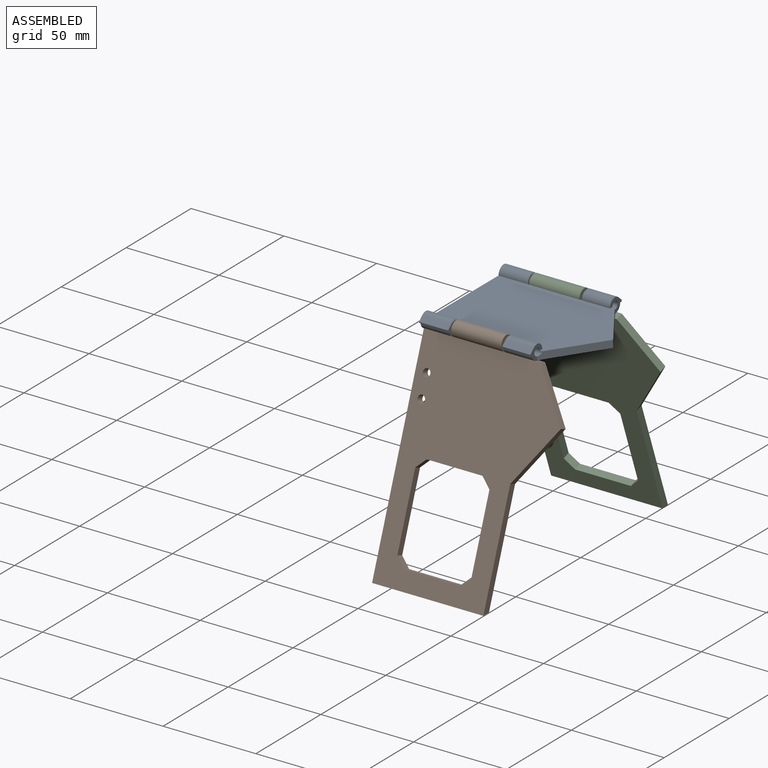
[diagram: assembled view]
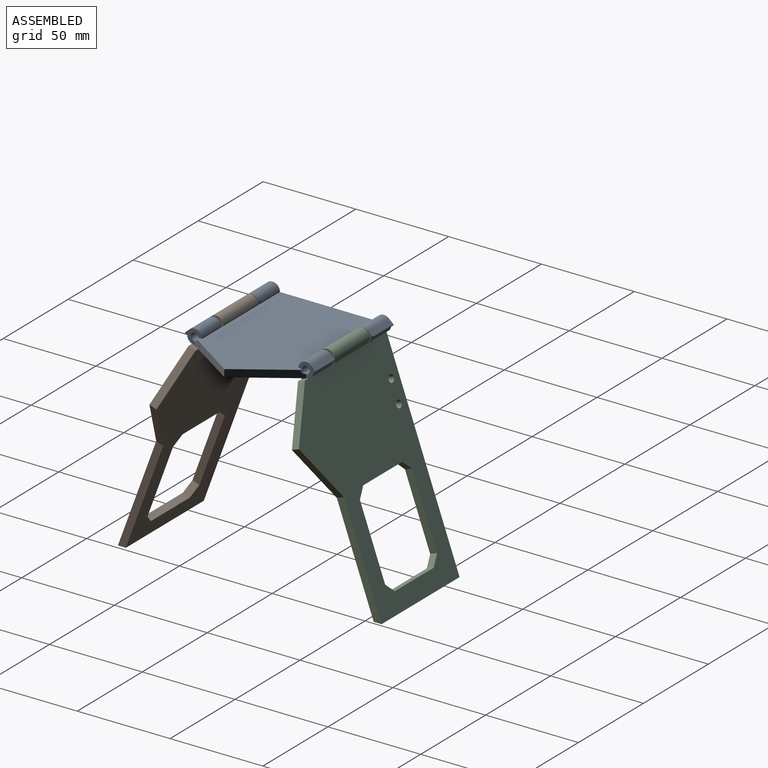
[diagram: assembled view, second angle]
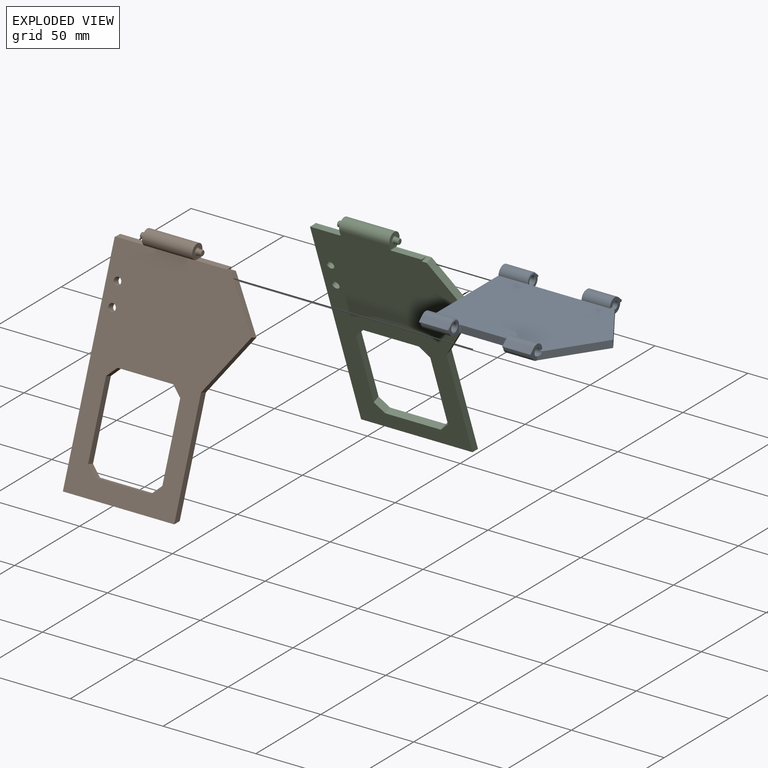
[diagram: exploded view]
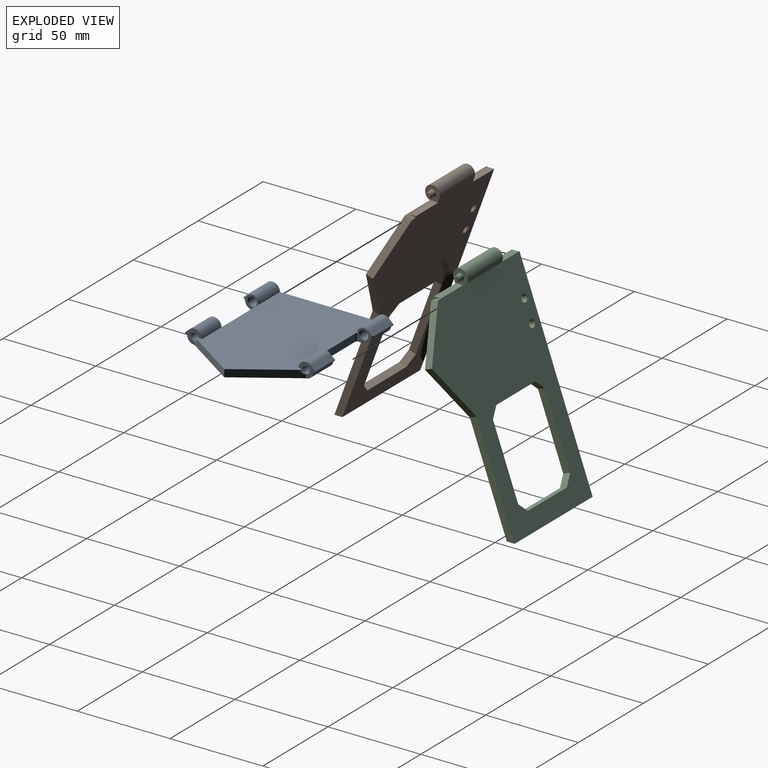
[diagram: exploded view, second angle]
ASSEMBLY  parts=3 mates=2
PART A: 61 faces, bbox 70.4x8x80 mm
  f0: cylinder r=4mm len=15.5mm, axis (0,0,1), area 97.5mm2, adj f4,f9,f22,f39,f48
  f1: cylinder r=4mm len=15mm, axis (0,0,1), area 138mm2, adj f5,f20,f38,f49
  f2: cylinder r=4mm len=15.5mm, axis (0,0,1), area 97.5mm2, adj f4,f11,f14,f35,f60
  f3: cylinder r=4mm len=15mm, axis (0,0,1), area 138mm2, adj f5,f9,f34,f53
  f4: plane 80x60mm, normal (0,-1,0), area 3968.2mm2, adj f0,f2,f7,f8,f9,f13,f14,f15
  f5: plane 80x56mm, normal (0,1,0), area 3718mm2, adj f1,f3,f8,f9,f10,f11,f12,f15
  f6: cylinder r=2mm len=15mm, axis (0,0,1), area 188.5mm2, adj f9,f27
  f7: cylinder r=4mm len=15.5mm, axis (0,0,1), area 97.5mm2, adj f4,f9,f13,f33,f56
  f8: plane 30x20mm, normal (-0.55,0,-0.83), area 140.4mm2, adj f4,f5,f10,f11,f18
  f9: plane 70.38x8mm, normal (0,0,1), area 294mm2, adj f0,f3,f4,f5,f6,f7,f16,f17
  f10: cylinder r=2mm len=16.33mm, axis (0,0,1), area 191.2mm2, adj f5,f8,f11,f26
  f11: plane 9.19x8mm, normal (0,0,-1), area 30.1mm2, adj f2,f5,f8,f10,f12,f35,f36,f42
  f12: cylinder r=4mm len=15mm, axis (0,0,1), area 138mm2, adj f5,f11,f36,f57
  f13: plane 8.19x7.5mm, normal (0,0,-1), area 27.4mm2, adj f4,f7,f27,f32,f53,f54,f56
  f14: plane 8.19x7.5mm, normal (0,0,1), area 27.4mm2, adj f2,f4,f26,f31,f57,f58,f60
  f15: plane 28x4mm, normal (-1,0,0), area 112mm2, adj f4,f5,f31,f32
  f16: cylinder r=2mm len=15mm, axis (0,0,1), area 188.5mm2, adj f9,f28
  f17: cylinder r=4mm len=15mm, axis (0,0,1), area 138mm2, adj f5,f9,f40,f45
  f18: plane 30x20mm, normal (0.55,0,-0.83), area 140.4mm2, adj f4,f5,f8,f19,f20
  f19: cylinder r=2mm len=16.33mm, axis (0,0,1), area 191.2mm2, adj f5,f18,f20,f25
  f20: plane 9.19x8mm, normal (0,0,-1), area 30.1mm2, adj f1,f5,f18,f19,f21,f37,f38,f43
  f21: cylinder r=4mm len=15.5mm, axis (0,0,1), area 97.5mm2, adj f4,f20,f23,f37,f52
  f22: plane 8.19x7.5mm, normal (0,0,-1), area 27.4mm2, adj f0,f4,f28,f29,f45,f46,f48
  f23: plane 8.19x7.5mm, normal (0,0,1), area 27.4mm2, adj f4,f21,f25,f30,f49,f50,f52
  f24: plane 28x4mm, normal (1,0,0), area 112mm2, adj f4,f5,f29,f30
  f25: cone r=2.5mm half-angle=45deg, axis (0,0,1), area 10mm2, adj f19,f23
  f26: cone r=2mm half-angle=45deg, axis (0,0,1), area 10mm2, adj f10,f14
  f27: cone r=2.5mm half-angle=45deg, axis (0,0,-1), area 10mm2, adj f6,f13
  f28: cone r=2mm half-angle=45deg, axis (0,0,-1), area 10mm2, adj f16,f22
  f29: cylinder r=0.5mm len=4mm, axis (0,1,0), area 3.1mm2, adj f4,f5,f22,f24
  f30: cylinder r=0.5mm len=4mm, axis (0,-1,0), area 3.1mm2, adj f4,f5,f23,f24
  f31: cylinder r=0.5mm len=4mm, axis (0,-1,0), area 3.1mm2, adj f4,f5,f14,f15
  f32: cylinder r=0.5mm len=4mm, axis (0,1,0), area 3.1mm2, adj f4,f5,f13,f15
  f33: plane 15x0.69mm, normal (0,-1,0), area 10.4mm2, adj f7,f9,f44,f56
  f34: plane 15x2.36mm, normal (-0.67,0.75,0), area 47.4mm2, adj f3,f9,f44,f54
  f35: plane 15x0.69mm, normal (0,-1,0), area 10.4mm2, adj f2,f11,f42,f60
  f36: plane 15x2.36mm, normal (-0.67,0.75,0), area 47.4mm2, adj f11,f12,f42,f58
  f37: plane 15x0.69mm, normal (0,-1,0), area 10.4mm2, adj f20,f21,f43,f52
  f38: plane 15x2.36mm, normal (0.67,0.75,0), area 47.4mm2, adj f1,f20,f43,f50
  f39: plane 15x0.69mm, normal (0,-1,0), area 10.4mm2, adj f0,f9,f41,f48
  f40: plane 15x2.36mm, normal (0.67,0.75,0), area 47.4mm2, adj f9,f17,f41,f46
  f41: cylinder r=0.5mm len=15mm, axis (0,0,1), area 18.1mm2, adj f9,f39,f40,f47
  f42: cylinder r=0.5mm len=15mm, axis (0,0,-1), area 18.1mm2, adj f11,f35,f36,f59
  f43: cylinder r=0.5mm len=15mm, axis (0,0,-1), area 18.1mm2, adj f20,f37,f38,f51
  f44: cylinder r=0.5mm len=15mm, axis (0,0,1), area 18.1mm2, adj f9,f33,f34,f55
  f45: cone r=3.5mm half-angle=45deg, axis (0,0,1), area 6.1mm2, adj f5,f17,f22,f46
  f46: plane 2.69x2.48mm, normal (0.47,0.53,-0.71), area 2.2mm2, adj f22,f40,f45,f47
  f47: cone r=0.5mm half-angle=45deg, axis (0,0,1), area 0.4mm2, adj f41,f46,f48
  f48: plane 0.72x0.5mm, normal (0,-0.71,-0.71), area 0.5mm2, adj f0,f22,f39,f47
  f49: cone r=4mm half-angle=45deg, axis (0,0,-1), area 6.1mm2, adj f1,f5,f23,f50
  f50: plane 2.69x2.48mm, normal (0.47,0.53,0.71), area 2.2mm2, adj f23,f38,f49,f51
  f51: cone r=0.5mm half-angle=45deg, axis (0,0,-1), area 0.4mm2, adj f43,f50,f52
  f52: plane 0.72x0.5mm, normal (0,-0.71,0.71), area 0.5mm2, adj f21,f23,f37,f51
  f53: cone r=4mm half-angle=45deg, axis (0,0,1), area 6.1mm2, adj f3,f5,f13,f54
  f54: plane 2.69x2.48mm, normal (-0.47,0.53,-0.71), area 2.2mm2, adj f13,f34,f53,f55
  f55: cone r=0.5mm half-angle=45deg, axis (0,0,1), area 0.4mm2, adj f44,f54,f56
  f56: plane 0.72x0.5mm, normal (0,-0.71,-0.71), area 0.5mm2, adj f7,f13,f33,f55
  f57: cone r=3.5mm half-angle=45deg, axis (0,0,-1), area 6.1mm2, adj f5,f12,f14,f58
  f58: plane 2.69x2.48mm, normal (-0.47,0.53,0.71), area 2.2mm2, adj f14,f36,f57,f59
  f59: cone r=0.5mm half-angle=45deg, axis (0,0,-1), area 0.4mm2, adj f42,f58,f60
  f60: plane 0.72x0.5mm, normal (0,-0.71,0.71), area 0.5mm2, adj f2,f14,f35,f59
PART B: 35 faces, bbox 80x124x8.2 mm
  f0: plane 16.45x0.8mm, normal (0,1,0), area 13.1mm2, adj f3,f4,f18,f24
  f1: plane 8x7.96mm, normal (1,0,0), area 37.2mm2, adj f5,f12,f21,f23
  f2: plane 8x7.96mm, normal (-1,0,0), area 37.2mm2, adj f5,f12,f22,f24
  f3: plane 117.16x4mm, normal (-1,0,0), area 463mm2, adj f0,f4,f12,f18,f30
  f4: plane 116x80mm, normal (0,0,1), area 5579.5mm2, adj f0,f3,f5,f6,f7,f8,f9,f10
  f5: cylinder r=4mm len=27.11mm, axis (-1,0,0), area 509mm2, adj f1,f2,f4,f12,f23,f24
  f6: plane 40x4mm, normal (1,0,0), area 160mm2, adj f4,f12,f31,f34
  f7: plane 30x4mm, normal (0,-1,0), area 120mm2, adj f4,f12,f33,f34
  f8: plane 40x4mm, normal (-1,0,0), area 160mm2, adj f4,f12,f32,f33
  f9: plane 60x4mm, normal (1,0,0), area 237.1mm2, adj f4,f10,f12,f30
  f10: plane 30x20mm, normal (0.83,-0.55,0), area 144.2mm2, adj f4,f9,f11,f12
  f11: plane 26x17.33mm, normal (0.83,0.55,0), area 125mm2, adj f4,f10,f12,f13
  f12: plane 118.54x80mm, normal (0,0,-1), area 5638.7mm2, adj f1,f2,f3,f5,f6,f7,f8,f9
  f13: plane 19.11x4mm, normal (0,1,0), area 23.7mm2, adj f4,f11,f12,f19,f20,f23
  f14: cylinder r=1.5mm len=3mm, axis (-1,0,0), area 21.2mm2, adj f21,f25
  f15: plane 2.5x2.5mm, normal (1,0,0), area 4.9mm2, adj f25
  f16: cylinder r=1.5mm len=3mm, axis (1,0,0), area 21.2mm2, adj f22,f26
  f17: plane 2.5x2.5mm, normal (-1,0,0), area 4.9mm2, adj f26
  f18: plane 16x3.2mm, normal (0,0.94,0.34), area 54.5mm2, adj f0,f3,f12,f24
  f19: plane 16x3.2mm, normal (0,0.94,0.34), area 54.5mm2, adj f12,f13,f20,f23
  f20: plane 3.2x1.16mm, normal (1,0,0), area 1.9mm2, adj f12,f13,f19
  f21: torus R=2mm, axis (-1,0,0), area 8.3mm2, adj f1,f14
  f22: torus R=2mm, axis (-1,0,0), area 8.3mm2, adj f2,f16
  f23: cylinder r=0.5mm len=4.73mm, axis (0,-0.34,0.94), area 3.1mm2, adj f1,f5,f12,f13,f19
  f24: cylinder r=0.5mm len=4.73mm, axis (0,0.34,-0.94), area 3.1mm2, adj f0,f2,f5,f12,f18
  f25: cone r=1.5mm half-angle=45deg, axis (-1,0,0), area 3.1mm2, adj f14,f15
  f26: cone r=1.5mm half-angle=45deg, axis (1,0,0), area 3.1mm2, adj f16,f17
  f27: cylinder r=2mm len=4mm, axis (0,0,-1), area 50.3mm2, adj f4,f12
  f28: cylinder r=2mm len=4mm, axis (0,0,-1), area 50.3mm2, adj f4,f12
  f29: plane 30x4mm, normal (0,1,0), area 120mm2, adj f4,f12,f31,f32
  f30: plane 60x4mm, normal (0,-0.94,-0.34), area 255.4mm2, adj f3,f4,f9,f12
  f31: plane 5x5mm, normal (0.71,0.71,0), area 28.3mm2, adj f4,f6,f12,f29
  f32: plane 5x5mm, normal (-0.71,0.71,0), area 28.3mm2, adj f4,f8,f12,f29
  f33: plane 5x5mm, normal (-0.71,-0.71,0), area 28.3mm2, adj f4,f7,f8,f12
  f34: plane 5x5mm, normal (0.71,-0.71,0), area 28.3mm2, adj f4,f6,f7,f12
PART C: 35 faces, bbox 80x124x8.2 mm
  f0: plane 40x4mm, normal (1,0,0), area 160mm2, adj f6,f12,f31,f34
  f1: plane 40x4mm, normal (-1,0,0), area 160mm2, adj f6,f12,f32,f33
  f2: plane 16.45x0.8mm, normal (0,1,0), area 13.1mm2, adj f5,f6,f18,f22
  f3: plane 8x7.96mm, normal (1,0,0), area 37.2mm2, adj f7,f12,f21,f24
  f4: plane 8x7.96mm, normal (-1,0,0), area 37.2mm2, adj f7,f12,f22,f23
  f5: plane 117.16x4mm, normal (-1,0,0), area 463mm2, adj f2,f6,f12,f18,f30
  f6: plane 116x80mm, normal (0,0,-1), area 5579.5mm2, adj f0,f1,f2,f5,f7,f8,f9,f10
  f7: cylinder r=4mm len=27.11mm, axis (-1,0,0), area 509mm2, adj f3,f4,f6,f12,f21,f22
  f8: plane 30x4mm, normal (0,-1,0), area 120mm2, adj f6,f12,f33,f34
  f9: plane 60x4mm, normal (1,0,0), area 237.1mm2, adj f6,f10,f12,f30
  f10: plane 30x20mm, normal (0.83,-0.55,0), area 144.2mm2, adj f6,f9,f11,f12
  f11: plane 26x17.33mm, normal (0.83,0.55,0), area 125mm2, adj f6,f10,f12,f13
  f12: plane 118.54x80mm, normal (0,0,1), area 5638.7mm2, adj f0,f1,f3,f4,f5,f7,f8,f9
  f13: plane 19.11x4mm, normal (0,1,0), area 23.7mm2, adj f6,f11,f12,f19,f20,f21
  f14: cylinder r=1.5mm len=3mm, axis (-1,0,0), area 21.2mm2, adj f24,f26
  f15: plane 2.5x2.5mm, normal (1,0,0), area 4.9mm2, adj f26
  f16: cylinder r=1.5mm len=3mm, axis (1,0,0), area 21.2mm2, adj f23,f25
  f17: plane 2.5x2.5mm, normal (-1,0,0), area 4.9mm2, adj f25
  f18: plane 16x3.2mm, normal (0,0.94,-0.34), area 54.5mm2, adj f2,f5,f12,f22
  f19: plane 16x3.2mm, normal (0,0.94,-0.34), area 54.5mm2, adj f12,f13,f20,f21
  f20: plane 3.2x1.16mm, normal (1,0,0), area 1.9mm2, adj f12,f13,f19
  f21: cylinder r=0.5mm len=4.73mm, axis (0,-0.34,-0.94), area 3.1mm2, adj f3,f7,f12,f13,f19
  f22: cylinder r=0.5mm len=4.73mm, axis (0,0.34,0.94), area 3.1mm2, adj f2,f4,f7,f12,f18
  f23: torus R=2mm, axis (-1,0,0), area 8.3mm2, adj f4,f16
  f24: torus R=2mm, axis (-1,0,0), area 8.3mm2, adj f3,f14
  f25: cone r=1.25mm half-angle=45deg, axis (1,0,0), area 3.1mm2, adj f16,f17
  f26: cone r=1.25mm half-angle=45deg, axis (-1,0,0), area 3.1mm2, adj f14,f15
  f27: cylinder r=2mm len=4mm, axis (0,0,-1), area 50.3mm2, adj f6,f12
  f28: cylinder r=2mm len=4mm, axis (0,0,-1), area 50.3mm2, adj f6,f12
  f29: plane 30x4mm, normal (0,1,0), area 120mm2, adj f6,f12,f31,f32
  f30: plane 60x4mm, normal (0,-0.94,0.34), area 255.4mm2, adj f5,f6,f9,f12
  f31: plane 5x5mm, normal (0.71,0.71,0), area 28.3mm2, adj f0,f6,f12,f29
  f32: plane 5x5mm, normal (-0.71,0.71,0), area 28.3mm2, adj f1,f6,f12,f29
  f33: plane 5x5mm, normal (-0.71,-0.71,0), area 28.3mm2, adj f1,f6,f8,f12
  f34: plane 5x5mm, normal (0.71,-0.71,0), area 28.3mm2, adj f0,f6,f8,f12
PLACE A rot(axis=(0.58,-0.58,-0.58),119.9deg) t=(-56.14,70.89,5.33)mm fixed
PLACE B rot(axis=(1,0,0),69.9deg) t=(-56.14,18.4,2.71)mm
PLACE C rot(axis=(1,0,0),109.9deg) t=(-56.14,70.89,5.33)mm
MATE revolute A.f6 <-> C.f7  axis (-1,0,0) through (-11.64,70.89,5.33)mm
MATE revolute A.f25 <-> B.f25  axis (-1,0,0) through (-11.64,10.89,5.47)mm
